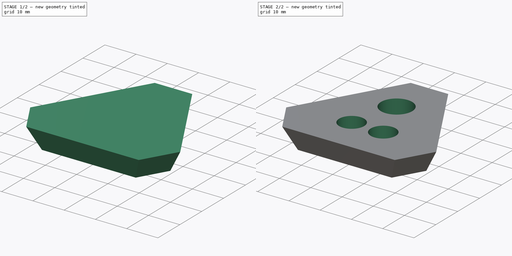
[diagram: build sequence overview — one tinted view per stage of 2, left to right]
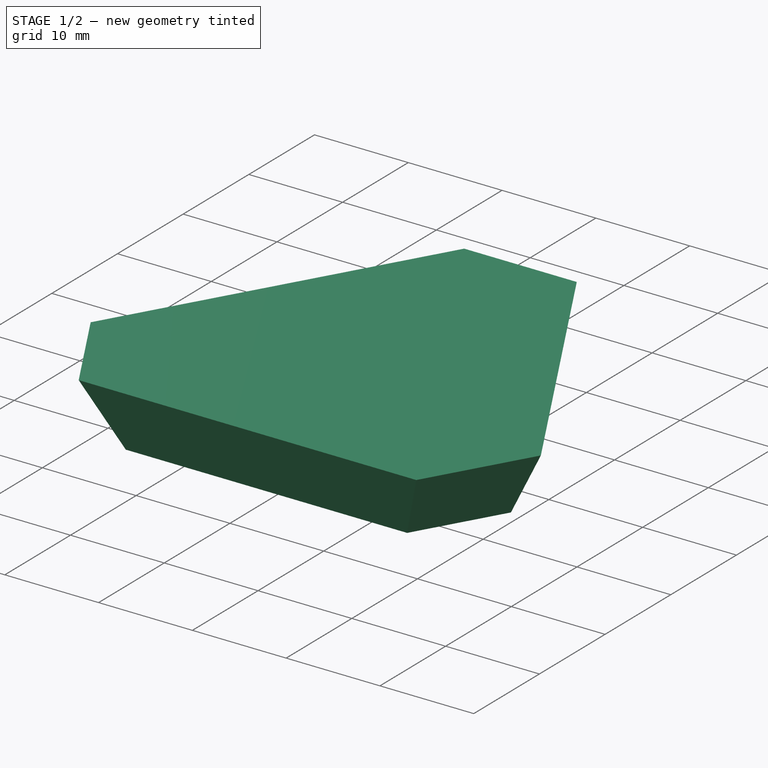
[diagram: stage 1 of 2 — iso view after this stage's code; geometry added in this stage tinted green]
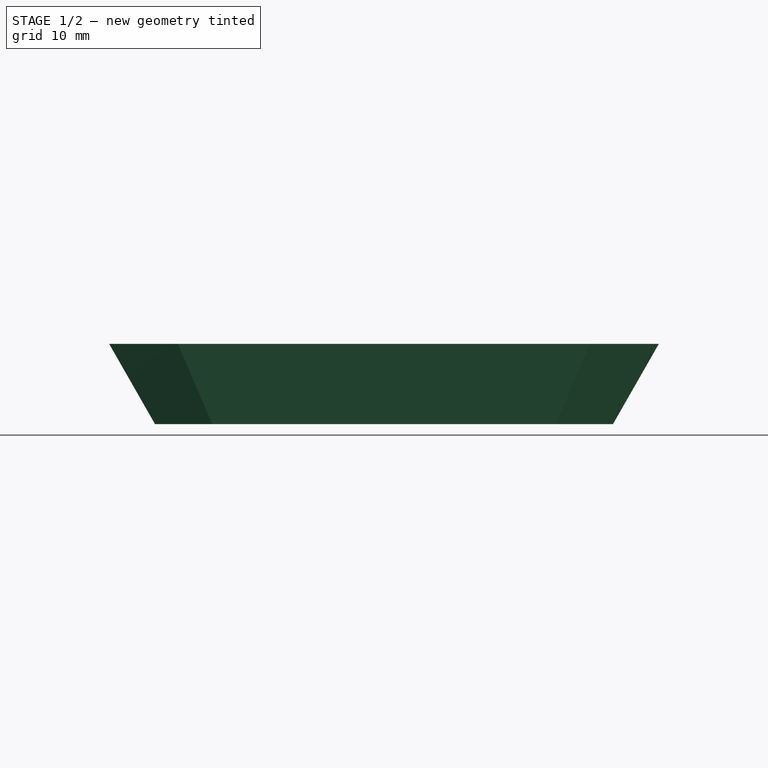
[diagram: stage 1 of 2 — front view after this stage's code; geometry added in this stage tinted green]
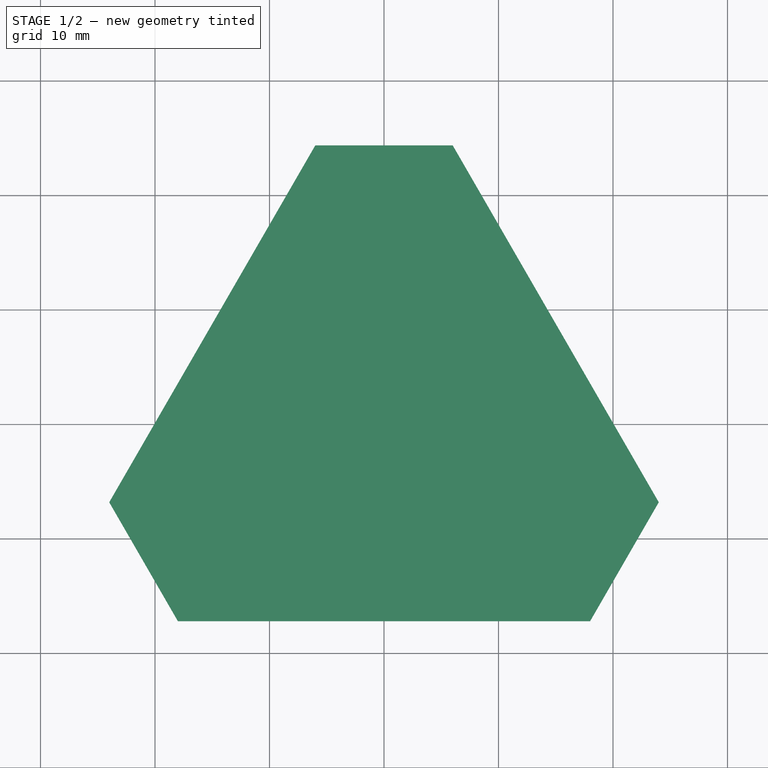
[diagram: stage 1 of 2 — top view after this stage's code; geometry added in this stage tinted green]
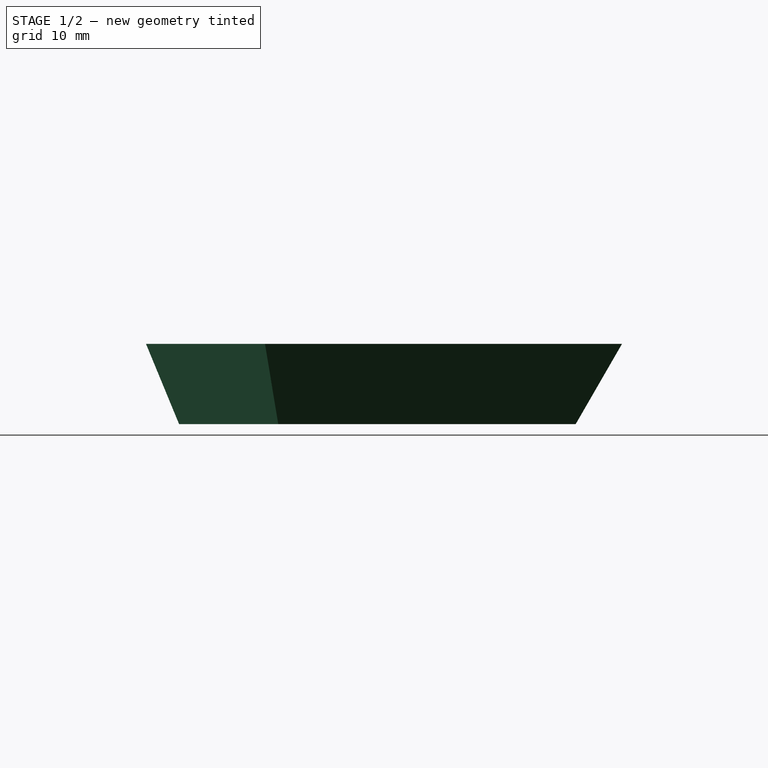
[diagram: stage 1 of 2 — right view after this stage's code; geometry added in this stage tinted green]
FCSTD DOCUMENT  (FreeCAD 0.14R2935 (Git))
Label: XMP Top
License: CC-BY 3.0
LicenseURL: http://creativecommons.org/licenses/by/3.0/
objects: Sketcher::SketchObject×3, Part::Loft×1, PartDesign::Pocket×1
note: 6 computed .brp shape members not serialized (recipe doc carries the construction recipe); baked Part::Feature solids carry a one-line shape summary decoded from their .brp

FEATURE [Sketcher::SketchObject] Sketch
  sketch-geometry (8):
    g0: LineSegment StartX=-5 StartY=20.2073 StartZ=0 EndX=5 EndY=20.2073 EndZ=0
    g1: LineSegment StartX=5 StartY=20.2073 StartZ=0 EndX=20 EndY=-5.7735 EndZ=0
    g2: LineSegment StartX=20 StartY=-5.7735 StartZ=0 EndX=15 EndY=-14.4338 EndZ=0
    g3: LineSegment StartX=15 StartY=-14.4338 StartZ=0 EndX=-15 EndY=-14.4338 EndZ=0
    g4: LineSegment StartX=-15 StartY=-14.4338 StartZ=0 EndX=-20 EndY=-5.7735 EndZ=0
    g5: LineSegment StartX=-20 StartY=-5.7735 StartZ=0 EndX=-5 EndY=20.2073 EndZ=0
    g6: LineSegment [constr] StartX=-12.5 StartY=7.21688 StartZ=0 EndX=17.5 EndY=-10.1036 EndZ=0
    g7: LineSegment [constr] StartX=-17.5 StartY=-10.1036 StartZ=0 EndX=12.5 EndY=7.21688 EndZ=0
  constraints (24):
    c: Horizontal(g0)
    c: Coincident(g1,g0)
    c: Coincident(g3,g2)
    c: Horizontal(g3)
    c: Coincident(g4,g3)
    c: Coincident(g5,g0)
    c: Coincident(g5,g4)
    c: Angle(g4,g5) = 2.0944
    c: Angle(g1,g2) = 2.0944
    c: Coincident(g1,g2)
    c: Distance(g0) = 10
    c: Distance(g3) = 30
    c: Equal(g4,g0)
    c: Equal(g3,g5)
    c: Equal(g3,g1)
    c: Equal(g2,g0)
    c: PointOnObject(g7,g1)
    c: PointOnObject(g7,g4)
    c: PointOnObject(g6,g5)
    c: PointOnObject(g6,g2)
    c: Symmetric(g1,g0,g7)
    c: Symmetric(g0,g4,g6)
    c: PointOnObject(g-1,g6)
    c: PointOnObject(g-1,g7)
FEATURE [Sketcher::SketchObject] Sketch001
  Placement = pos=(0,0,7) rot=(0,0,1;0rad)
  sketch-geometry (8):
    g0: LineSegment StartX=-6 StartY=24.2487 StartZ=0 EndX=6 EndY=24.2487 EndZ=0
    g1: LineSegment StartX=6 StartY=24.2487 StartZ=0 EndX=24 EndY=-6.9282 EndZ=0
    g2: LineSegment StartX=24 StartY=-6.9282 StartZ=0 EndX=18 EndY=-17.3205 EndZ=0
    g3: LineSegment StartX=18 StartY=-17.3205 StartZ=0 EndX=-18 EndY=-17.3205 EndZ=0
    g4: LineSegment StartX=-18 StartY=-17.3205 StartZ=0 EndX=-24 EndY=-6.9282 EndZ=0
    g5: LineSegment StartX=-24 StartY=-6.9282 StartZ=0 EndX=-6 EndY=24.2487 EndZ=0
    g6: LineSegment [constr] StartX=-15 StartY=8.66025 StartZ=0 EndX=21 EndY=-12.1244 EndZ=0
    g7: LineSegment [constr] StartX=15 StartY=8.66025 StartZ=0 EndX=-21 EndY=-12.1244 EndZ=0
  constraints (24):
    c: Horizontal(g0)
    c: Coincident(g1,g0)
    c: Coincident(g2,g1)
    c: Coincident(g3,g2)
    c: Horizontal(g3)
    c: Coincident(g4,g3)
    c: Coincident(g5,g4)
    c: Coincident(g5,g0)
    c: Angle(g4,g5) = 2.0944
    c: Angle(g1,g2) = 2.0944
    c: Distance(g3) = 36
    c: Distance(g0) = 12
    c: Equal(g5,g3)
    c: Equal(g3,g1)
    c: Equal(g4,g0)
    c: Equal(g0,g2)
    c: PointOnObject(g6,g5)
    c: PointOnObject(g6,g2)
    c: PointOnObject(g7,g1)
    c: PointOnObject(g7,g4)
    c: Symmetric(g0,g1,g7)
    c: Symmetric(g0,g4,g6)
    c: PointOnObject(g-1,g7)
    c: PointOnObject(g-1,g6)
FEATURE [Part::Loft] Loft
  Ruled = false
  Sections = -> [Sketch,Sketch001]
  Solid = true
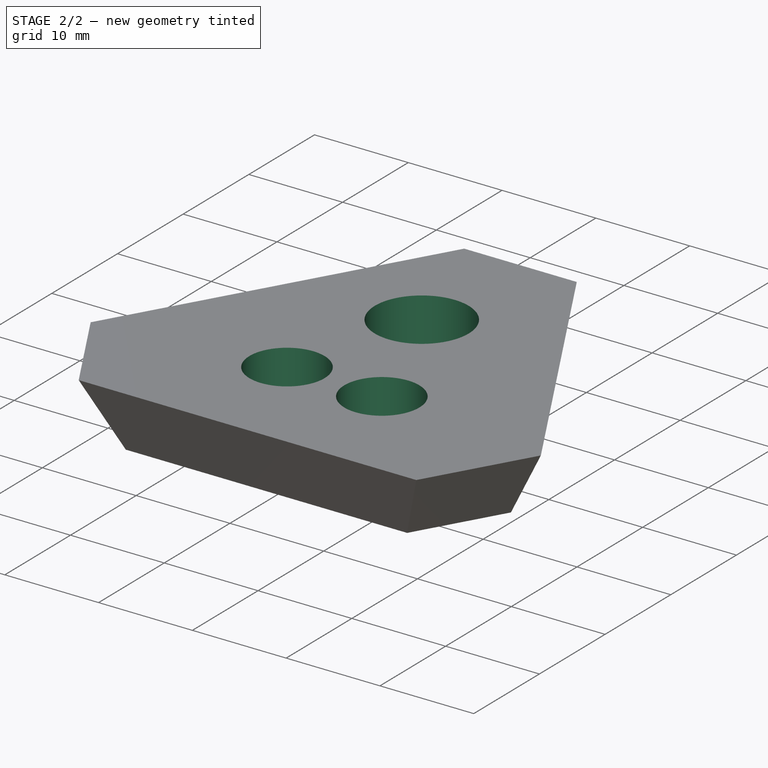
[diagram: stage 2 of 2 — iso view after this stage's code; geometry added in this stage tinted green]
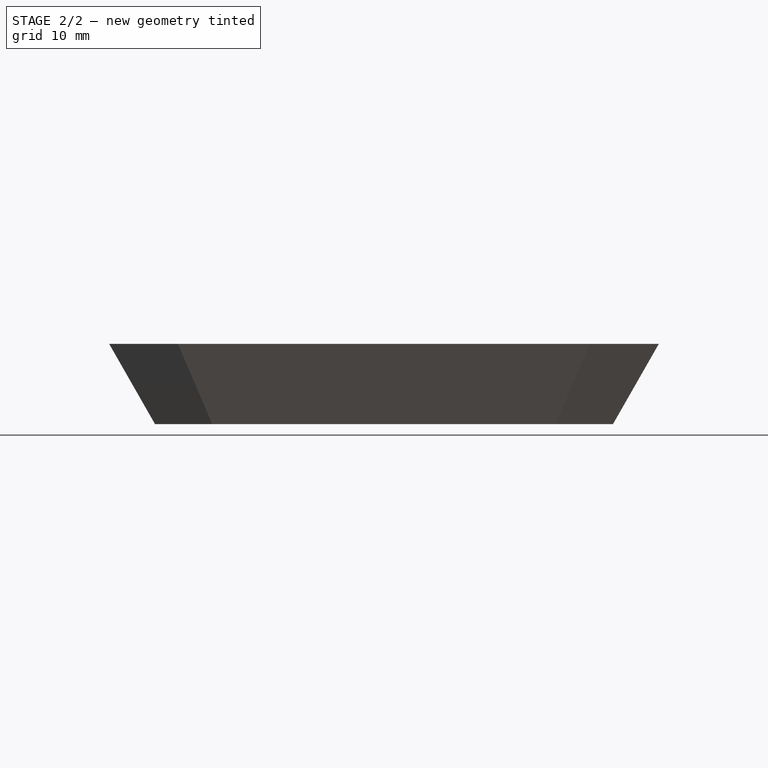
[diagram: stage 2 of 2 — front view after this stage's code; geometry added in this stage tinted green]
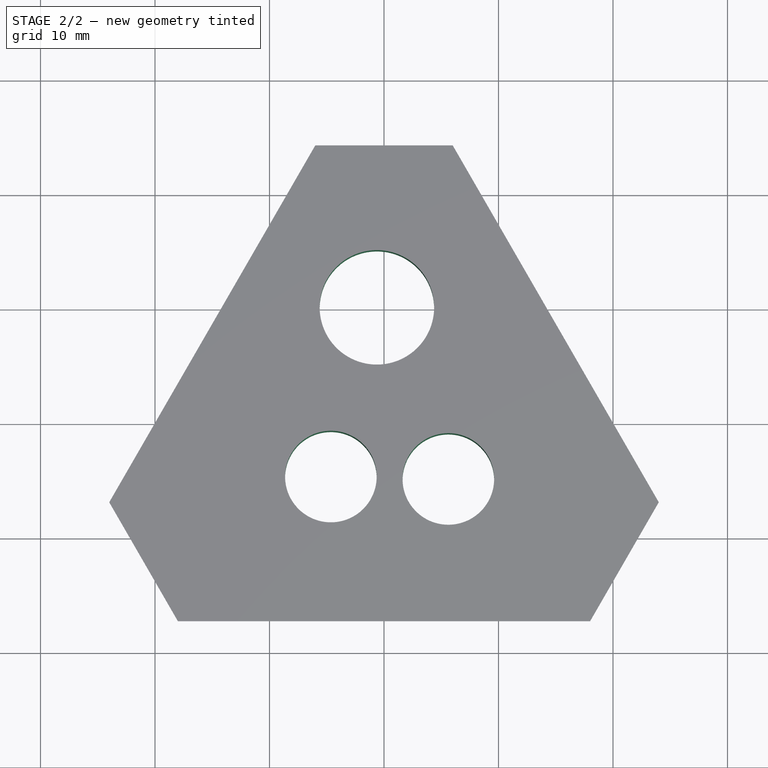
[diagram: stage 2 of 2 — top view after this stage's code; geometry added in this stage tinted green]
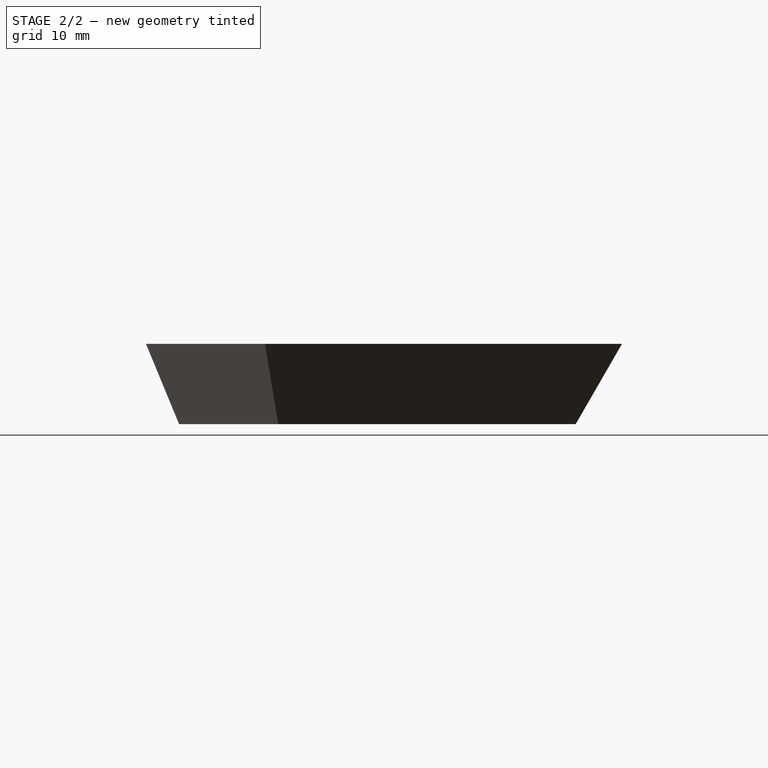
[diagram: stage 2 of 2 — right view after this stage's code; geometry added in this stage tinted green]
FEATURE [Sketcher::SketchObject] Sketch002
  Placement = pos=(0,0,7) rot=(0,0,1;0rad)
  Support = -> Loft [Face8]
  sketch-geometry (3):
    g0: Circle CenterX=5.69 CenterY=-4.82 CenterZ=0 NormalX=0 NormalY=0 NormalZ=1 Radius=4
    g1: Circle CenterX=-0.62 CenterY=10.1 CenterZ=0 NormalX=0 NormalY=0 NormalZ=1 Radius=5
    g2: Circle CenterX=-4.64 CenterY=-4.68 CenterZ=0 NormalX=0 NormalY=0 NormalZ=1 Radius=4
  constraints (9):
    c: Radius(g1) = 5
    c: Radius(g0) = 4
    c: Radius(g2) = 4
    c: DistanceX(g1) = -0.62
    c: DistanceY(g1) = 10.1
    c: DistanceX(g2) = -4.64
    c: DistanceY(g2) = -4.68
    c: DistanceX(g0) = 5.69
    c: DistanceY(g0) = -4.82
FEATURE [PartDesign::Pocket] Pocket
  Length = 5
  Sketch = -> Sketch002
  Type = 1
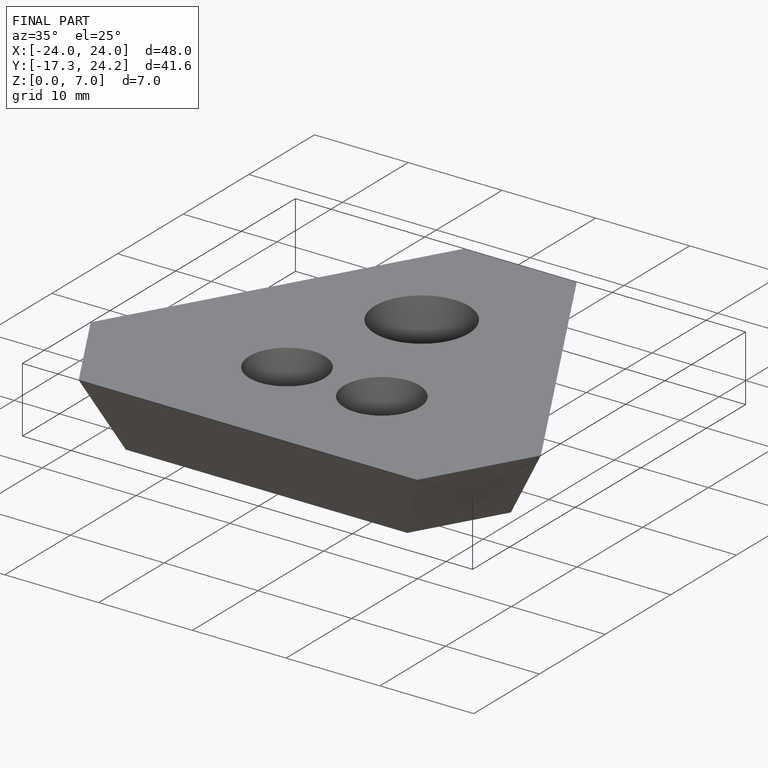
[diagram: finished part — iso view with bounding-box wireframe]
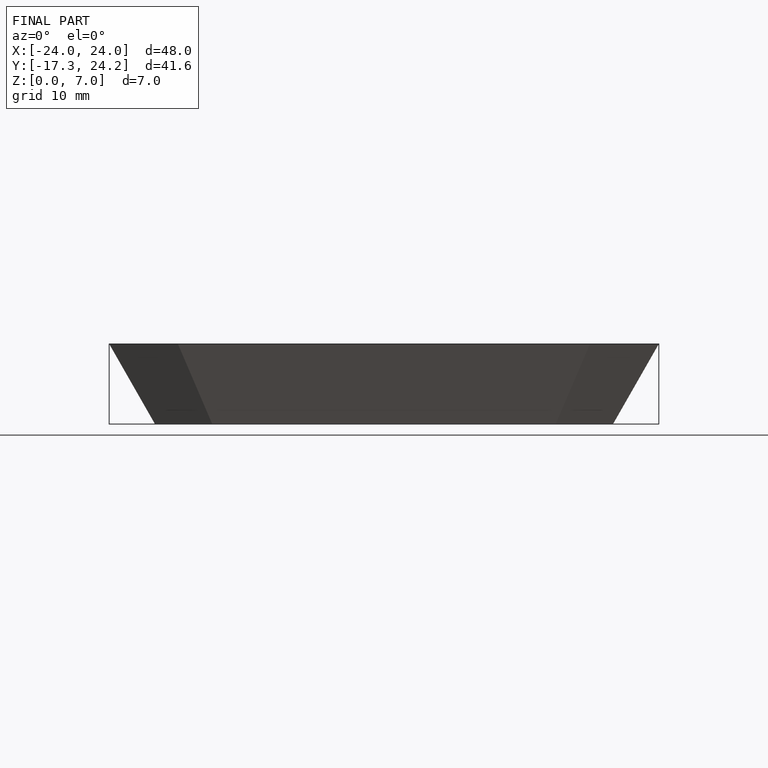
[diagram: finished part — front view with bounding-box wireframe]
